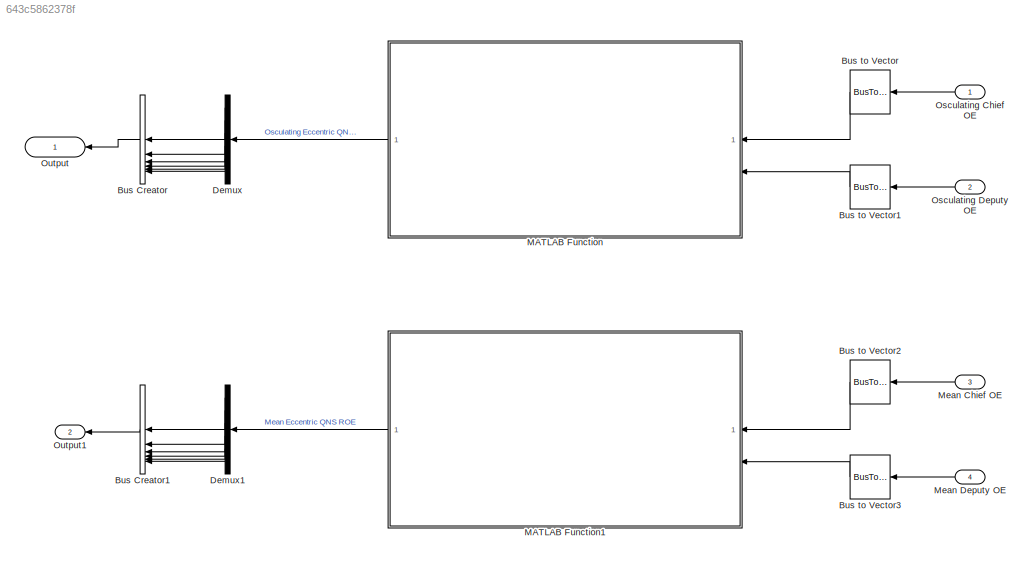
MODEL slx_643c5862378f
KIND model
CONFIG AbsTol = auto
CONFIG EnableMultiTasking = off
CONFIG FixedStep = dt
CONFIG MaxStep = auto
CONFIG MinStep = auto
CONFIG RelTol = 1e-3
CONFIG SampleTimeConstraint = Unconstrained
CONFIG SolverName = ode4
CONFIG StartTime = 0.0
CONFIG StopTime = 10.0
BLOCK [BusCreator] Bus Creator
  DisplayOption = bar
  InheritFromInputs = on
  Inputs = 6
  NonVirtualBus = on
  OutDataTypeStr = Bus: eccentricSingularROE
BLOCK [BusCreator] Bus Creator1
  DisplayOption = bar
  InheritFromInputs = on
  Inputs = 6
  OutDataTypeStr = Bus: eccentricSingularROE
BLOCK [BusToVector] Bus to Vector
BLOCK [BusToVector] Bus to Vector1
BLOCK [BusToVector] Bus to Vector2
BLOCK [BusToVector] Bus to Vector3
BLOCK [Demux] Demux
  Outputs = 6
BLOCK [Demux] Demux1
  Outputs = 6
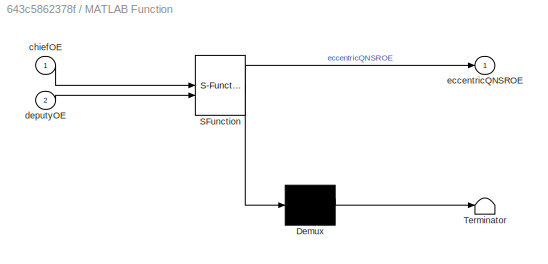
BLOCK [SubSystem] MATLAB Function
  ErrorFcn = Stateflow.Translate.translate
  LibrarySourceBlock = simulink/User-Defined\nFunctions/MATLAB Function
  PermitHierarchicalResolution = ExplicitOnly
  SFBlockType = MATLAB Function
  TreatAsAtomicUnit = on
BLOCK [Demux] MATLAB Function/ Demux 
  Outputs = 1
BLOCK [S-Function] MATLAB Function/ SFunction 
  EnableBusSupport = on
  FunctionName = sf_sfun
  PortCounts = [2 2]
  SFcnIsStateOwnerBlock = off
  SFunctionDeploymentMode = off
  Tag = Stateflow S-Function 2
BLOCK [Terminator] MATLAB Function/ Terminator 
BLOCK [Inport] MATLAB Function/chiefOE
BLOCK [Inport] MATLAB Function/deputyOE
  Port = 2
BLOCK [Outport] MATLAB Function/eccentricQNSROE
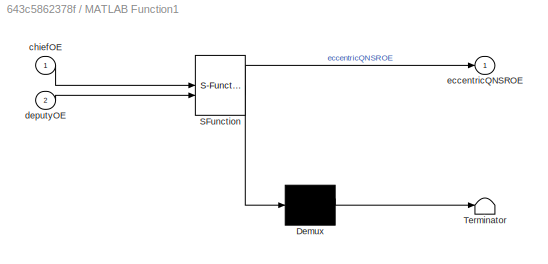
BLOCK [SubSystem] MATLAB Function1
  ErrorFcn = Stateflow.Translate.translate
  LibrarySourceBlock = simulink/User-Defined\nFunctions/MATLAB Function
  PermitHierarchicalResolution = ExplicitOnly
  SFBlockType = MATLAB Function
  TreatAsAtomicUnit = on
BLOCK [Demux] MATLAB Function1/ Demux 
  Outputs = 1
BLOCK [S-Function] MATLAB Function1/ SFunction 
  EnableBusSupport = on
  FunctionName = sf_sfun
  PortCounts = [2 2]
  SFcnIsStateOwnerBlock = off
  SFunctionDeploymentMode = off
  Tag = Stateflow S-Function 1
BLOCK [Terminator] MATLAB Function1/ Terminator 
BLOCK [Inport] MATLAB Function1/chiefOE
BLOCK [Inport] MATLAB Function1/deputyOE
  Port = 2
BLOCK [Outport] MATLAB Function1/eccentricQNSROE
BLOCK [Inport] Mean Chief OE
  OutDataTypeStr = Bus: meanOrbitElements
  Port = 3
BLOCK [Inport] Mean Deputy OE
  OutDataTypeStr = Bus: meanOrbitElements
  Port = 4
BLOCK [Inport] Osculating Chief OE
  OutDataTypeStr = Bus: osculatingOrbitElements
BLOCK [Inport] Osculating Deputy OE
  OutDataTypeStr = Bus: osculatingOrbitElements
  Port = 2
BLOCK [Outport] Output
  OutDataTypeStr = Bus: eccentricSingularROE
BLOCK [Outport] Output1
  OutDataTypeStr = Bus: eccentricSingularROE
  Port = 2
LINE Bus Creator1:1 -> Output1:1
LINE Bus Creator:1 -> Output:1
LINE Bus to Vector1:1 -> MATLAB Function:2
LINE Bus to Vector2:1 -> MATLAB Function1:1
LINE Bus to Vector3:1 -> MATLAB Function1:2
LINE Bus to Vector:1 -> MATLAB Function:1
LINE Demux1:1 -> Bus Creator1:1
LINE Demux1:2 -> Bus Creator1:2
LINE Demux1:3 -> Bus Creator1:3
LINE Demux1:4 -> Bus Creator1:4
LINE Demux1:5 -> Bus Creator1:5
LINE Demux1:6 -> Bus Creator1:6
LINE Demux:1 -> Bus Creator:1
LINE Demux:2 -> Bus Creator:2
LINE Demux:3 -> Bus Creator:3
LINE Demux:4 -> Bus Creator:4
LINE Demux:5 -> Bus Creator:5
LINE Demux:6 -> Bus Creator:6
LINE MATLAB Function1:1 -> Demux1:1
LINE MATLAB Function:1 -> Demux:1
LINE Mean Chief OE:1 -> Bus to Vector2:1
LINE Mean Deputy OE:1 -> Bus to Vector3:1
LINE Osculating Chief OE:1 -> Bus to Vector:1
LINE Osculating Deputy OE:1 -> Bus to Vector1:1
CHART MATLAB Function states=1 transitions=1
  STATE_LABEL 'eML_blk_kernel()'
  STATE_LABEL 'SCRIPT:\nfunction eccentricQNSROE = computeEccentricQNSROE(chiefOE, deputyOE)\n\neccentricQNSROE = computeEccentricQNSROE(chiefOE, deputyOE);\n\nend\n'
CHART MATLAB Function1 states=1 transitions=1
  STATE_LABEL 'eML_blk_kernel()'
  STATE_LABEL 'SCRIPT:\nfunction eccentricQNSROE = computeEccentricQNSROE(chiefOE, deputyOE)\n\neccentricQNSROE = computeEccentricQNSROE(chiefOE, deputyOE);\n\nend\n'
CHART  states=0 transitions=0
CHART  states=0 transitions=0
